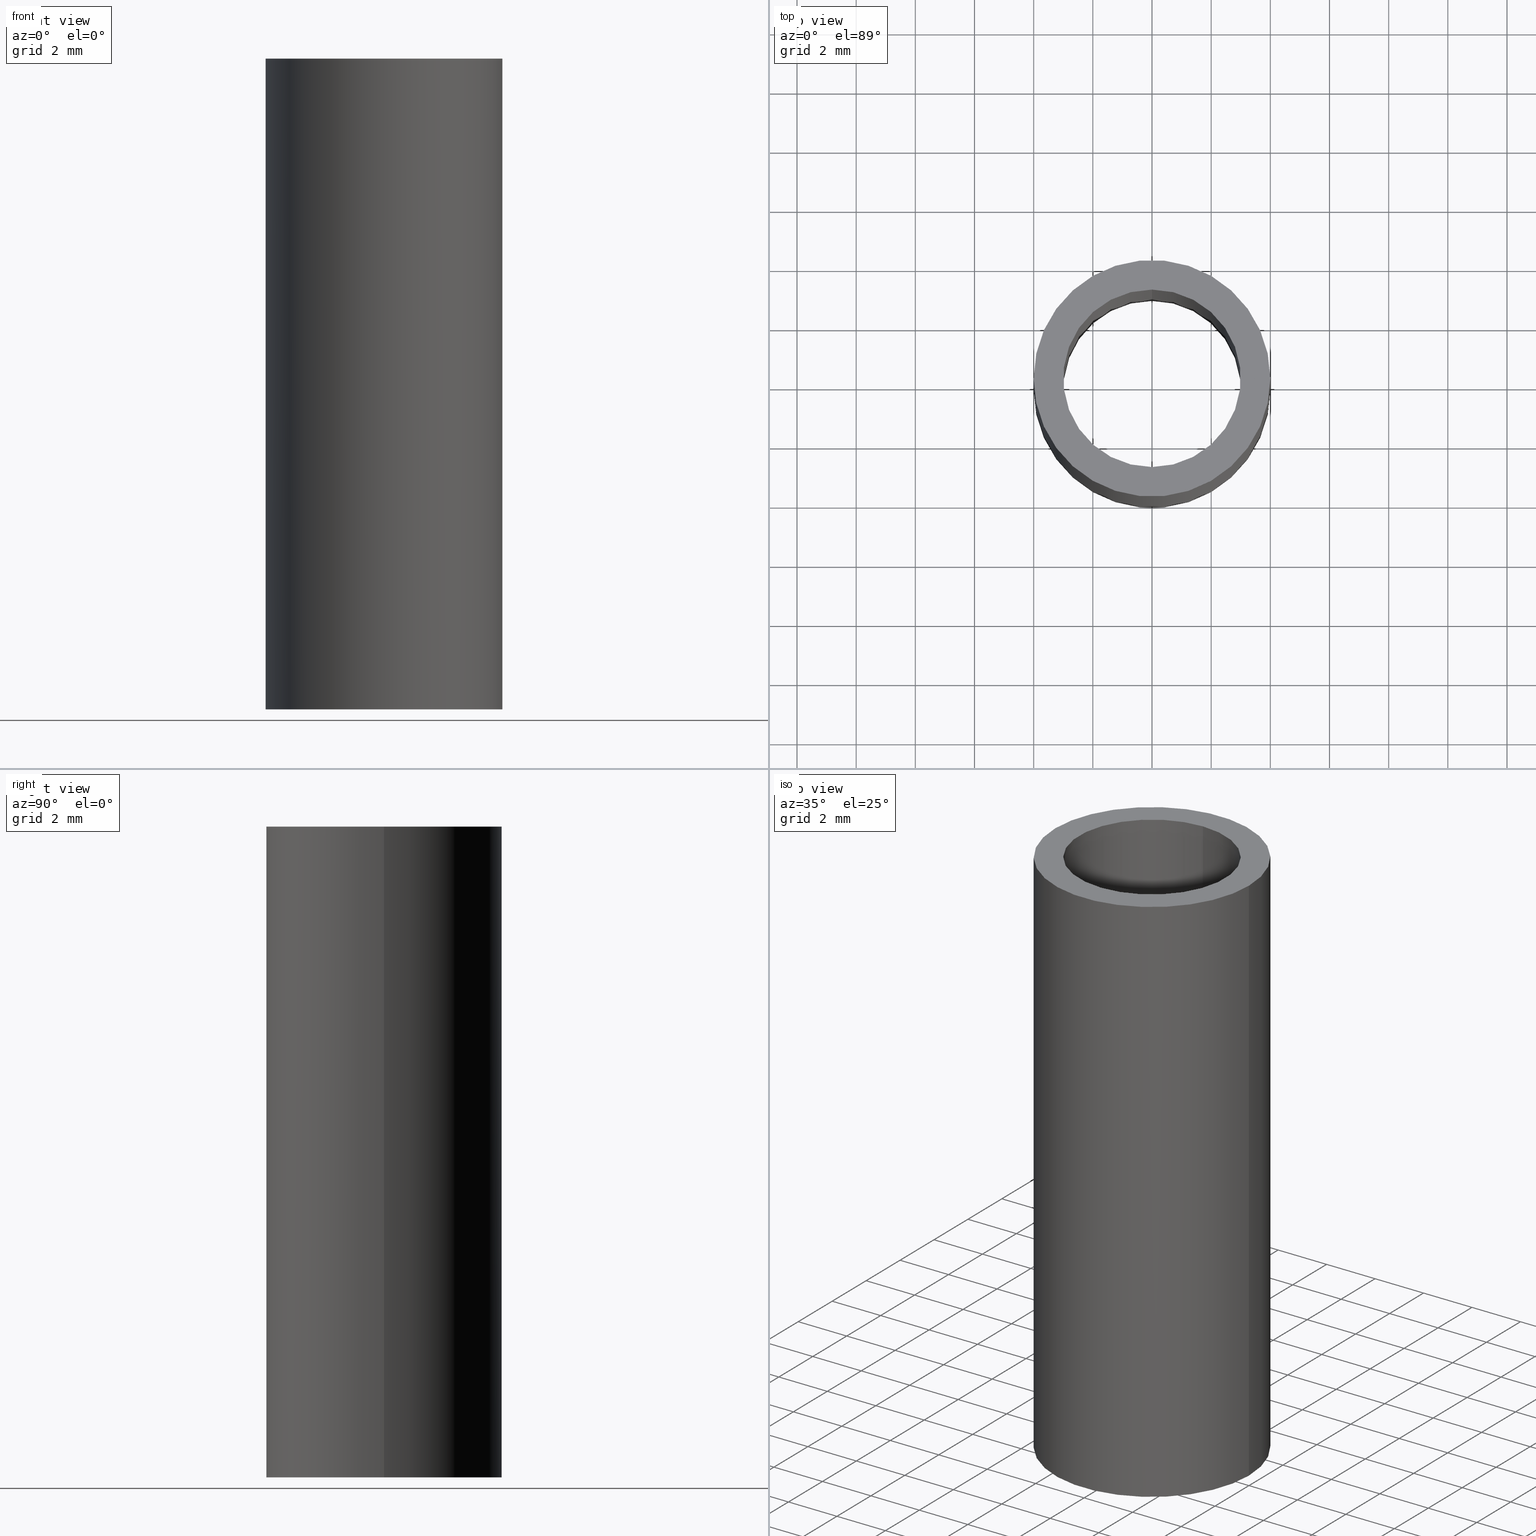
[diagram: canonical four-view strip — front | top / right | iso, engineering-drawing reading convention]
A machine part, canonical four-view strip (front | top / right | iso — engineering-drawing reading convention). The complete STEP part file that produces these views, byte-faithful:
ISO-10303-21;
HEADER;
/****************************************************************
 * Generated by software with PDE/Lib inside                    *
 * PDElib Version v4.4, created Mon 02/23/2004                  *
 * International Technegroup Inc. (www.iti-oh.com)              *
 ****************************************************************/
FILE_DESCRIPTION(('STEP AP203'),'2;1');
FILE_NAME('19.300.00.stp','2011-02-14T08:56:37',(''),(''),'2009.3.110','THINKDESIGN','');
FILE_SCHEMA(('CONFIG_CONTROL_DESIGN'));
ENDSEC;
DATA;
#2=CARTESIAN_POINT('',(0.0,0.0,22.000000010000001));
#3=DIRECTION('',(0.0,0.0,-1.0));
#4=DIRECTION('',(-1.0,0.0,0.0));
#5=AXIS2_PLACEMENT_3D('',#2,#3,#4);
#6=CYLINDRICAL_SURFACE('',#5,3.0);
#7=CARTESIAN_POINT('',(-3.673940E-016,3.0,22.0));
#8=VERTEX_POINT('',#7);
#9=CARTESIAN_POINT('',(0.0,-3.0,22.0));
#10=VERTEX_POINT('',#9);
#11=CARTESIAN_POINT('',(0.0,0.0,22.0));
#12=DIRECTION('',(0.0,0.0,-1.0));
#13=DIRECTION('',(0.0,-1.0,0.0));
#14=AXIS2_PLACEMENT_3D('',#11,#12,#13);
#15=CIRCLE('',#14,3.0);
#16=EDGE_CURVE('',#8,#10,#15,.T.);
#17=ORIENTED_EDGE('',*,*,#16,.F.);
#18=CARTESIAN_POINT('',(-3.673940E-016,3.0,0.0));
#19=VERTEX_POINT('',#18);
#20=CARTESIAN_POINT('',(-3.673940E-016,3.0,22.0));
#21=DIRECTION('',(0.0,0.0,-1.0));
#22=VECTOR('',#21,22.0);
#23=LINE('',#20,#22);
#24=EDGE_CURVE('',#8,#19,#23,.T.);
#25=ORIENTED_EDGE('',*,*,#24,.T.);
#26=CARTESIAN_POINT('',(0.0,-3.0,0.0));
#27=VERTEX_POINT('',#26);
#28=CARTESIAN_POINT('',(0.0,0.0,0.0));
#29=DIRECTION('',(0.0,0.0,-1.0));
#30=DIRECTION('',(-1.0,0.0,0.0));
#31=AXIS2_PLACEMENT_3D('',#28,#29,#30);
#32=CIRCLE('',#31,3.0);
#33=EDGE_CURVE('',#19,#27,#32,.T.);
#34=ORIENTED_EDGE('',*,*,#33,.T.);
#35=CARTESIAN_POINT('',(0.0,-3.0,22.0));
#36=DIRECTION('',(0.0,0.0,-1.0));
#37=VECTOR('',#36,22.0);
#38=LINE('',#35,#37);
#39=EDGE_CURVE('',#10,#27,#38,.T.);
#40=ORIENTED_EDGE('',*,*,#39,.F.);
#41=EDGE_LOOP('',(#17,#25,#34,#40));
#42=FACE_OUTER_BOUND('',#41,.T.);
#43=ADVANCED_FACE('',(#42),#6,.F.);
#44=CARTESIAN_POINT('',(0.0,0.0,-1.000000E-008));
#45=DIRECTION('',(0.0,0.0,1.0));
#46=DIRECTION('',(0.0,-1.0,0.0));
#47=AXIS2_PLACEMENT_3D('',#44,#45,#46);
#48=CYLINDRICAL_SURFACE('',#47,4.0);
#49=CARTESIAN_POINT('',(-4.0,4.898587E-016,0.0));
#50=VERTEX_POINT('',#49);
#51=CARTESIAN_POINT('',(4.0,0.0,0.0));
#52=VERTEX_POINT('',#51);
#53=CARTESIAN_POINT('',(0.0,0.0,0.0));
#54=DIRECTION('',(0.0,0.0,-1.0));
#55=DIRECTION('',(1.0,0.0,0.0));
#56=AXIS2_PLACEMENT_3D('',#53,#54,#55);
#57=CIRCLE('',#56,4.0);
#58=EDGE_CURVE('',#50,#52,#57,.T.);
#59=ORIENTED_EDGE('',*,*,#58,.F.);
#60=CARTESIAN_POINT('',(-4.0,4.898587E-016,22.0));
#61=VERTEX_POINT('',#60);
#62=CARTESIAN_POINT('',(-4.0,4.898587E-016,0.0));
#63=DIRECTION('',(0.0,0.0,1.0));
#64=VECTOR('',#63,22.0);
#65=LINE('',#62,#64);
#66=EDGE_CURVE('',#50,#61,#65,.T.);
#67=ORIENTED_EDGE('',*,*,#66,.T.);
#68=CARTESIAN_POINT('',(4.0,0.0,22.0));
#69=VERTEX_POINT('',#68);
#70=CARTESIAN_POINT('',(0.0,0.0,22.0));
#71=DIRECTION('',(0.0,0.0,-1.0));
#72=DIRECTION('',(1.0,0.0,0.0));
#73=AXIS2_PLACEMENT_3D('',#70,#71,#72);
#74=CIRCLE('',#73,4.0);
#75=EDGE_CURVE('',#61,#69,#74,.T.);
#76=ORIENTED_EDGE('',*,*,#75,.T.);
#77=CARTESIAN_POINT('',(4.0,0.0,0.0));
#78=DIRECTION('',(0.0,0.0,1.0));
#79=VECTOR('',#78,22.0);
#80=LINE('',#77,#79);
#81=EDGE_CURVE('',#52,#69,#80,.T.);
#82=ORIENTED_EDGE('',*,*,#81,.F.);
#83=EDGE_LOOP('',(#59,#67,#76,#82));
#84=FACE_OUTER_BOUND('',#83,.T.);
#85=ADVANCED_FACE('',(#84),#48,.T.);
#86=CARTESIAN_POINT('',(0.0,0.0,-1.000000E-008));
#87=DIRECTION('',(0.0,0.0,1.0));
#88=DIRECTION('',(0.0,1.0,0.0));
#89=AXIS2_PLACEMENT_3D('',#86,#87,#88);
#90=CYLINDRICAL_SURFACE('',#89,4.0);
#91=ORIENTED_EDGE('',*,*,#66,.F.);
#92=CARTESIAN_POINT('',(0.0,0.0,0.0));
#93=DIRECTION('',(0.0,0.0,-1.0));
#94=DIRECTION('',(1.0,0.0,0.0));
#95=AXIS2_PLACEMENT_3D('',#92,#93,#94);
#96=CIRCLE('',#95,4.0);
#97=EDGE_CURVE('',#52,#50,#96,.T.);
#98=ORIENTED_EDGE('',*,*,#97,.F.);
#99=ORIENTED_EDGE('',*,*,#81,.T.);
#100=CARTESIAN_POINT('',(0.0,0.0,22.0));
#101=DIRECTION('',(0.0,0.0,-1.0));
#102=DIRECTION('',(1.0,0.0,0.0));
#103=AXIS2_PLACEMENT_3D('',#100,#101,#102);
#104=CIRCLE('',#103,4.0);
#105=EDGE_CURVE('',#69,#61,#104,.T.);
#106=ORIENTED_EDGE('',*,*,#105,.T.);
#107=EDGE_LOOP('',(#91,#98,#99,#106));
#108=FACE_OUTER_BOUND('',#107,.T.);
#109=ADVANCED_FACE('',(#108),#90,.T.);
#110=CARTESIAN_POINT('',(4.400000000000000,-4.400000000000000,0.0));
#111=DIRECTION('',(0.0,0.0,-1.0));
#112=DIRECTION('',(-1.0,0.0,0.0));
#113=AXIS2_PLACEMENT_3D('',#110,#111,#112);
#114=PLANE('',#113);
#115=ORIENTED_EDGE('',*,*,#97,.T.);
#116=ORIENTED_EDGE('',*,*,#58,.T.);
#117=EDGE_LOOP('',(#115,#116));
#118=FACE_OUTER_BOUND('',#117,.T.);
#119=CARTESIAN_POINT('',(0.0,0.0,0.0));
#120=DIRECTION('',(0.0,0.0,-1.0));
#121=DIRECTION('',(-1.0,0.0,0.0));
#122=AXIS2_PLACEMENT_3D('',#119,#120,#121);
#123=CIRCLE('',#122,3.0);
#124=EDGE_CURVE('',#27,#19,#123,.T.);
#125=ORIENTED_EDGE('',*,*,#124,.F.);
#126=ORIENTED_EDGE('',*,*,#33,.F.);
#127=EDGE_LOOP('',(#125,#126));
#128=FACE_BOUND('',#127,.T.);
#129=ADVANCED_FACE('',(#118,#128),#114,.T.);
#130=CARTESIAN_POINT('',(4.400000000000000,-4.400000000000000,22.0));
#131=DIRECTION('',(0.0,0.0,-1.0));
#132=DIRECTION('',(-1.0,0.0,0.0));
#133=AXIS2_PLACEMENT_3D('',#130,#131,#132);
#134=PLANE('',#133);
#135=ORIENTED_EDGE('',*,*,#105,.F.);
#136=ORIENTED_EDGE('',*,*,#75,.F.);
#137=EDGE_LOOP('',(#135,#136));
#138=FACE_OUTER_BOUND('',#137,.T.);
#139=CARTESIAN_POINT('',(0.0,0.0,22.0));
#140=DIRECTION('',(0.0,0.0,-1.0));
#141=DIRECTION('',(0.0,-1.0,0.0));
#142=AXIS2_PLACEMENT_3D('',#139,#140,#141);
#143=CIRCLE('',#142,3.0);
#144=EDGE_CURVE('',#10,#8,#143,.T.);
#145=ORIENTED_EDGE('',*,*,#144,.T.);
#146=ORIENTED_EDGE('',*,*,#16,.T.);
#147=EDGE_LOOP('',(#145,#146));
#148=FACE_BOUND('',#147,.T.);
#149=ADVANCED_FACE('',(#138,#148),#134,.F.);
#150=CARTESIAN_POINT('',(0.0,0.0,22.000000010000001));
#151=DIRECTION('',(0.0,0.0,-1.0));
#152=DIRECTION('',(1.0,0.0,0.0));
#153=AXIS2_PLACEMENT_3D('',#150,#151,#152);
#154=CYLINDRICAL_SURFACE('',#153,3.0);
#155=ORIENTED_EDGE('',*,*,#24,.F.);
#156=ORIENTED_EDGE('',*,*,#144,.F.);
#157=ORIENTED_EDGE('',*,*,#39,.T.);
#158=ORIENTED_EDGE('',*,*,#124,.T.);
#159=EDGE_LOOP('',(#155,#156,#157,#158));
#160=FACE_OUTER_BOUND('',#159,.T.);
#161=ADVANCED_FACE('',(#160),#154,.F.);
#162=CLOSED_SHELL('',(#43,#85,#109,#129,#149,#161));
#163=MANIFOLD_SOLID_BREP('Importato1',#162);
#169=(NAMED_UNIT(*)PLANE_ANGLE_UNIT()SI_UNIT($,.RADIAN.));
#170=DIMENSIONAL_EXPONENTS(0.0,0.0,0.0,0.0,0.0,0.0,0.0);
#171=PLANE_ANGLE_MEASURE_WITH_UNIT(PLANE_ANGLE_MEASURE(0.017453292500000),#169);
#175=(CONVERSION_BASED_UNIT('DEGREE',#171)NAMED_UNIT(#170)PLANE_ANGLE_UNIT());
#179=(NAMED_UNIT(*)SI_UNIT($,.STERADIAN.)SOLID_ANGLE_UNIT());
#183=(LENGTH_UNIT()NAMED_UNIT(*)SI_UNIT(.MILLI.,.METRE.));
#185=UNCERTAINTY_MEASURE_WITH_UNIT(LENGTH_MEASURE(0.001000000000000),#183,'DISTANCE_ACCURACY_VALUE','');
#187=(GEOMETRIC_REPRESENTATION_CONTEXT(3)GLOBAL_UNCERTAINTY_ASSIGNED_CONTEXT((#185))GLOBAL_UNIT_ASSIGNED_CONTEXT((#175,#179,#183))REPRESENTATION_CONTEXT('thinkdesign','2009.3.110'));
#188=ADVANCED_BREP_SHAPE_REPRESENTATION('',(#163),#187);
#189=APPLICATION_CONTEXT('configuration controlled 3D designs of mechanical parts and assemblies');
#190=APPLICATION_PROTOCOL_DEFINITION('International Standard','config_control_design',1995,#189);
#191=MECHANICAL_CONTEXT('None',#189,'mechanical');
#192=PRODUCT('None','None','None',(#191));
#193=PRODUCT_RELATED_PRODUCT_CATEGORY('detail',$,(#192));
#194=PRODUCT_CATEGORY('part',$);
#195=PRODUCT_CATEGORY_RELATIONSHIP('None','None',#194,#193);
#196=PERSON('PERSON1','None','None',$,$,$);
#197=ORGANIZATION('','None','None');
#198=PERSON_AND_ORGANIZATION(#196,#197);
#199=PERSON_AND_ORGANIZATION_ROLE('design_owner');
#200=CC_DESIGN_PERSON_AND_ORGANIZATION_ASSIGNMENT(#198,#199,(#192));
#201=PRODUCT_DEFINITION_FORMATION_WITH_SPECIFIED_SOURCE('None','None',#192,.NOT_KNOWN.);
#202=PERSON('PERSON2','None','None',$,$,$);
#203=ORGANIZATION('','None','None');
#204=PERSON_AND_ORGANIZATION(#202,#203);
#205=PERSON_AND_ORGANIZATION_ROLE('creator');
#206=CC_DESIGN_PERSON_AND_ORGANIZATION_ASSIGNMENT(#204,#205,(#201));
#207=PERSON('PERSON3','None','None',$,$,$);
#208=ORGANIZATION('','None','None');
#209=PERSON_AND_ORGANIZATION(#207,#208);
#210=PERSON_AND_ORGANIZATION_ROLE('part_supplier');
#211=CC_DESIGN_PERSON_AND_ORGANIZATION_ASSIGNMENT(#209,#210,(#201));
#212=APPROVAL_STATUS('approved');
#213=APPROVAL(#212,'None');
#214=PERSON('PERSON4','None','None',$,$,$);
#215=ORGANIZATION('','None','None');
#216=PERSON_AND_ORGANIZATION(#214,#215);
#217=APPROVAL_ROLE('None');
#218=APPROVAL_PERSON_ORGANIZATION(#216,#213,#217);
#219=CALENDAR_DATE(2011,14,2);
#220=COORDINATED_UNIVERSAL_TIME_OFFSET(0,0,.AHEAD.);
#221=LOCAL_TIME(8,56,37.0,#220);
#222=DATE_AND_TIME(#219,#221);
#223=APPROVAL_DATE_TIME(#222,#213);
#224=CC_DESIGN_APPROVAL(#213,(#201));
#225=SECURITY_CLASSIFICATION_LEVEL('unclassified');
#226=SECURITY_CLASSIFICATION('None','None',#225);
#227=CC_DESIGN_SECURITY_CLASSIFICATION(#226,(#201));
#228=APPROVAL_STATUS('approved');
#229=APPROVAL(#228,'None');
#230=PERSON('PERSON5','None','None',$,$,$);
#231=ORGANIZATION('','None','None');
#232=PERSON_AND_ORGANIZATION(#230,#231);
#233=APPROVAL_ROLE('None');
#234=APPROVAL_PERSON_ORGANIZATION(#232,#229,#233);
#235=CALENDAR_DATE(2011,14,2);
#236=COORDINATED_UNIVERSAL_TIME_OFFSET(0,0,.AHEAD.);
#237=LOCAL_TIME(8,56,37.0,#236);
#238=DATE_AND_TIME(#235,#237);
#239=APPROVAL_DATE_TIME(#238,#229);
#240=CC_DESIGN_APPROVAL(#229,(#226));
#241=PERSON('PERSON6','None','None',$,$,$);
#242=ORGANIZATION('','None','None');
#243=PERSON_AND_ORGANIZATION(#241,#242);
#244=PERSON_AND_ORGANIZATION_ROLE('classification_officer');
#245=CC_DESIGN_PERSON_AND_ORGANIZATION_ASSIGNMENT(#243,#244,(#226));
#246=DATE_TIME_ROLE('classification_date');
#247=CALENDAR_DATE(2011,14,2);
#248=COORDINATED_UNIVERSAL_TIME_OFFSET(0,0,.AHEAD.);
#249=LOCAL_TIME(8,56,37.0,#248);
#250=DATE_AND_TIME(#247,#249);
#251=CC_DESIGN_DATE_AND_TIME_ASSIGNMENT(#250,#246,(#226));
#252=DESIGN_CONTEXT('part definition',#189,'design');
#253=DOCUMENT_TYPE('cad_filename');
#254=DOCUMENT('None','None','None',#253);
#255=PRODUCT_DEFINITION_WITH_ASSOCIATED_DOCUMENTS('None','None',#201,#252,(#254));
#256=PERSON('PERSON7','None','None',$,$,$);
#257=ORGANIZATION('','None','None');
#258=PERSON_AND_ORGANIZATION(#256,#257);
#259=PERSON_AND_ORGANIZATION_ROLE('creator');
#260=CC_DESIGN_PERSON_AND_ORGANIZATION_ASSIGNMENT(#258,#259,(#255));
#261=DATE_TIME_ROLE('creation_date');
#262=CALENDAR_DATE(2011,14,2);
#263=COORDINATED_UNIVERSAL_TIME_OFFSET(0,0,.AHEAD.);
#264=LOCAL_TIME(8,56,37.0,#263);
#265=DATE_AND_TIME(#262,#264);
#266=CC_DESIGN_DATE_AND_TIME_ASSIGNMENT(#265,#261,(#255));
#267=APPROVAL_STATUS('approved');
#268=APPROVAL(#267,'None');
#269=PERSON('PERSON8','None','None',$,$,$);
#270=ORGANIZATION('','None','None');
#271=PERSON_AND_ORGANIZATION(#269,#270);
#272=APPROVAL_ROLE('None');
#273=APPROVAL_PERSON_ORGANIZATION(#271,#268,#272);
#274=CALENDAR_DATE(2011,14,2);
#275=COORDINATED_UNIVERSAL_TIME_OFFSET(0,0,.AHEAD.);
#276=LOCAL_TIME(8,56,37.0,#275);
#277=DATE_AND_TIME(#274,#276);
#278=APPROVAL_DATE_TIME(#277,#268);
#279=CC_DESIGN_APPROVAL(#268,(#255));
#280=PRODUCT_DEFINITION_SHAPE('None','None',#255);
#281=SHAPE_DEFINITION_REPRESENTATION(#280,#188);
#282=DIMENSIONAL_EXPONENTS(0.0,0.0,0.0,0.0,0.0,0.0,0.0);
#283=DIMENSIONAL_EXPONENTS(1.0,0.0,0.0,0.0,0.0,0.0,0.0);
ENDSEC;
END-ISO-10303-21;
